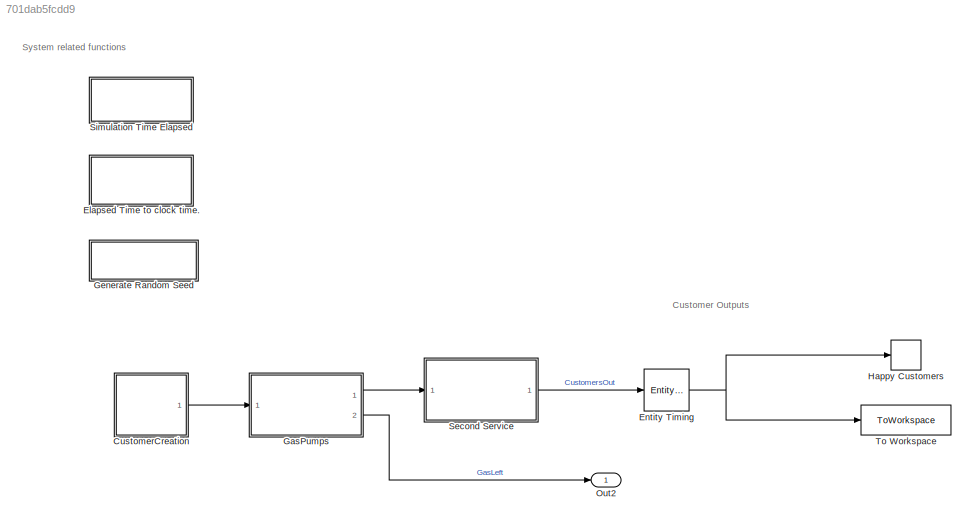
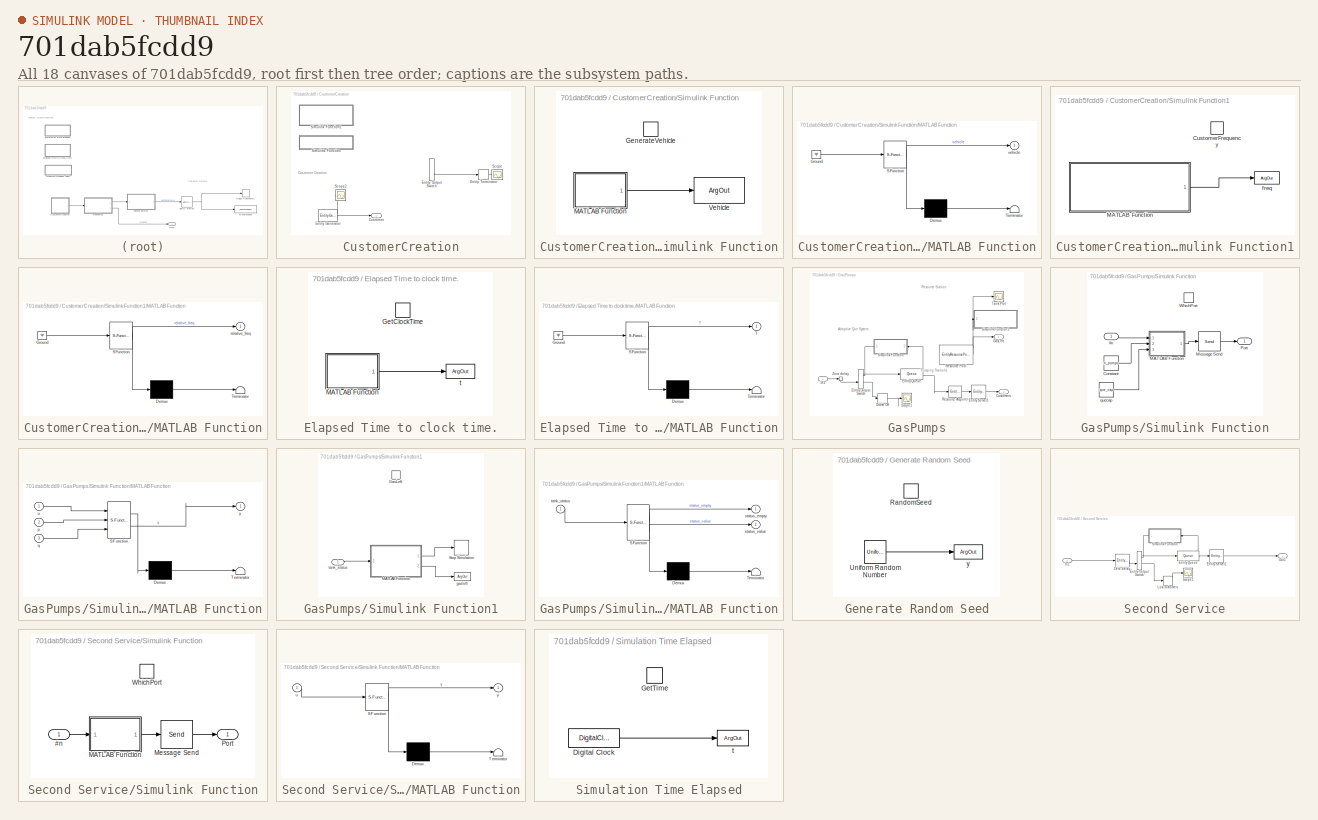
[diagram: thumbnail index - all 18 canvases of the model, root first then tree order]
MODEL slx_701dab5fcdd9
KIND model
CONFIG AbsTol = auto
CONFIG EnableMultiTasking = on
CONFIG FixedStep = auto
CONFIG InitFcn = % Load the model which describes\n% the traffic flow throughout the\n% day.\n%load("TrafficFlowModel.Mat")\n\n% Load the values at each quarter,\n% Sufficient for traffic modelling.\nload("TrafficFlowValues.mat")
CONFIG MaxStep = auto
CONFIG MinStep = auto
CONFIG RelTol = 1e-3
CONFIG SampleTimeConstraint = Unconstrained
CONFIG SolverName = VariableStepAuto
CONFIG StartTime = 0.0
CONFIG StopTime = 168
BLOCK [SubSystem] CustomerCreation
  Ports = [0, 1]
  RequestExecContextInheritance = off
BLOCK [Outport] CustomerCreation/Customer
BLOCK [EntityGenerator] CustomerCreation/Entity Generator
  AttributeInitialValue = 1|1|1|1|0
  AttributeName = Vehicle|Passengers|RequiredGas|Hungry|ServiceTime
  EntityType = Structured
  EntityTypeName = Customer
  GenerateAction = seed = RandomSeed();\nrng(seed);\nvehicle = GenerateVehicle(); % 1 for gas vehicle, 0 for non gas.\n% In europe the average car occupies 1.5 passengers.\n% Therefor sample from weighted descrete variable.\npassengers = max(poissrnd(mu_passengers),1);\n% Gas required.\nif vehicle==1 % Car\n    required_gas = normrnd(45,4);\nelseif vehicle==2 % Trucks\n    required_gas = normrnd(757,40);\nelse % Pedestrians do...<+640ch>
  IntergenerationTimeAction = seed = RandomSeed();\nrng(seed);\ndt = exprnd(1/(mu_customers*CustomerFrequency()+eps),1);
  NumberEntitiesDeparted = on
  OutputPortMap = o0,o3
  OutputPortMessageModes = n,m
  Period = 1/4
  Ports = [0, 2]
  TimeSource = MATLAB action
BLOCK [EntityOutputSwitch] CustomerCreation/Entity Output Switch
  Commented = on
  InputPortMap = u0,u1
  InputPortMessageModes = m,m
  OutputPortMap = o0,o1
  OutputPortMessageModes = m,m
  Ports = [2, 2]
  SwitchAttributeName = RequiredGas
  SwitchingCriterion = From control port
BLOCK [EntityTerminator] CustomerCreation/Entity Terminator
  Commented = on
  InputPortMap = u0
  InputPortMessageModes = m
  NumberEntitiesArrived = on
  OutputPortMap = o0
  Ports = [1, 1]
BLOCK [Scope] CustomerCreation/Scope
  Commented = on
  Floating = off
  NameLocation = left
  NumInputPorts = 1
  Ports = [1]
  ScopeSpecificationString = Simulink.scopes.TimeScopeBlockCfg('CurrentConfiguration', extmgr.ConfigurationSet(extmgr.Configuration('Core','General UI',true),extmgr.Configuration('Core','Source UI',true),extmgr.Configuration('Sources','WiredSimulink',true,'DataLoggingVariableName','ScopeData2'),extmgr.Configuration('Visuals','Time Domain',true),extmgr.Configuration('Tools','Plot Navigation',true),extmgr.Configuration('Tools',...<+58ch>
BLOCK [Scope] CustomerCreation/Scope2
  Floating = off
  NumInputPorts = 1
  Ports = [1]
  ScopeSpecificationString = Simulink.scopes.TimeScopeBlockCfg('CurrentConfiguration', extmgr.ConfigurationSet(extmgr.Configuration('Core','General UI',true),extmgr.Configuration('Core','Source UI',true),extmgr.Configuration('Sources','WiredSimulink',true,'DataLoggingVariableName','ScopeData2'),extmgr.Configuration('Visuals','Time Domain',true,'SerializedDisplays',{struct('MinYLimReal','-214.5','MaxYLimReal','1940.5','YLabelR...<+1444ch>
BLOCK [SubSystem] CustomerCreation/Simulink Function
  Ports = [0, 0, 0, 1]
  RequestExecContextInheritance = off
  TreatAsAtomicUnit = on
BLOCK [TriggerPort] CustomerCreation/Simulink Function/GenerateVehicle
  FunctionName = GenerateVehicle
  FunctionVisibility = scoped
  IsSimulinkFunction = on
  Ports = []
  StatesWhenEnabling = held
  TriggerType = function-call
  VariantControl = (inherit)
BLOCK [SubSystem] CustomerCreation/Simulink Function/MATLAB Function
  ErrorFcn = Stateflow.Translate.translate
  PermitHierarchicalResolution = ExplicitOnly
  Ports = [0, 1]
  RequestExecContextInheritance = off
  SFBlockType = MATLAB Function
  TreatAsAtomicUnit = on
BLOCK [Demux] CustomerCreation/Simulink Function/MATLAB Function/ Demux 
  Outputs = 1
  Ports = [1, 1]
BLOCK [Ground] CustomerCreation/Simulink Function/MATLAB Function/ Ground 
BLOCK [S-Function] CustomerCreation/Simulink Function/MATLAB Function/ SFunction 
  EnableBusSupport = on
  FunctionName = sf_sfun
  PortCounts = [1 2]
  Ports = [1, 2]
  SFcnIsStateOwnerBlock = off
  SFunctionDeploymentMode = off
  Tag = Stateflow S-Function 4
BLOCK [Terminator] CustomerCreation/Simulink Function/MATLAB Function/ Terminator 
BLOCK [Outport] CustomerCreation/Simulink Function/MATLAB Function/vehicle
BLOCK [ArgOut] CustomerCreation/Simulink Function/Vehicle
  ArgumentName = Vehicle
  DisableCoverage = on
BLOCK [SubSystem] CustomerCreation/Simulink Function1
  Ports = [0, 0, 0, 1]
  RequestExecContextInheritance = off
  TreatAsAtomicUnit = on
BLOCK [TriggerPort] CustomerCreation/Simulink Function1/CustomerFrequency
  FunctionName = CustomerFrequency
  FunctionVisibility = scoped
  IsSimulinkFunction = on
  Ports = []
  StatesWhenEnabling = held
  TriggerType = function-call
  VariantControl = (inherit)
BLOCK [SubSystem] CustomerCreation/Simulink Function1/MATLAB Function
  ErrorFcn = Stateflow.Translate.translate
  PermitHierarchicalResolution = ExplicitOnly
  Ports = [0, 1]
  RequestExecContextInheritance = off
  SFBlockType = MATLAB Function
  TreatAsAtomicUnit = on
BLOCK [Demux] CustomerCreation/Simulink Function1/MATLAB Function/ Demux 
  Outputs = 1
  Ports = [1, 1]
BLOCK [Ground] CustomerCreation/Simulink Function1/MATLAB Function/ Ground 
BLOCK [S-Function] CustomerCreation/Simulink Function1/MATLAB Function/ SFunction 
  EnableBusSupport = on
  FunctionName = sf_sfun
  Parameters = traffic_values
  PortCounts = [1 2]
  Ports = [1, 2]
  SFcnIsStateOwnerBlock = off
  SFunctionDeploymentMode = off
  Tag = Stateflow S-Function 6
BLOCK [Terminator] CustomerCreation/Simulink Function1/MATLAB Function/ Terminator 
BLOCK [Outport] CustomerCreation/Simulink Function1/MATLAB Function/relative_freq
BLOCK [ArgOut] CustomerCreation/Simulink Function1/freq
  ArgumentName = freq
  DisableCoverage = on
BLOCK [SubSystem] Elapsed Time to clock time.
  Ports = [0, 0, 0, 1]
  RequestExecContextInheritance = off
  TreatAsAtomicUnit = on
BLOCK [TriggerPort] Elapsed Time to clock time./GetClockTime
  FunctionName = GetClockTime
  FunctionVisibility = scoped
  IsSimulinkFunction = on
  Ports = []
  StatesWhenEnabling = held
  TriggerType = function-call
  VariantControl = (inherit)
BLOCK [SubSystem] Elapsed Time to clock time./MATLAB Function
  ErrorFcn = Stateflow.Translate.translate
  PermitHierarchicalResolution = ExplicitOnly
  Ports = [0, 1]
  RequestExecContextInheritance = off
  SFBlockType = MATLAB Function
  TreatAsAtomicUnit = on
BLOCK [Demux] Elapsed Time to clock time./MATLAB Function/ Demux 
  Outputs = 1
  Ports = [1, 1]
BLOCK [Ground] Elapsed Time to clock time./MATLAB Function/ Ground 
BLOCK [S-Function] Elapsed Time to clock time./MATLAB Function/ SFunction 
  EnableBusSupport = on
  FunctionName = sf_sfun
  PortCounts = [1 2]
  Ports = [1, 2]
  SFcnIsStateOwnerBlock = off
  SFunctionDeploymentMode = off
  Tag = Stateflow S-Function 5
BLOCK [Terminator] Elapsed Time to clock time./MATLAB Function/ Terminator 
BLOCK [Outport] Elapsed Time to clock time./MATLAB Function/T
BLOCK [ArgOut] Elapsed Time to clock time./t
  ArgumentName = t
  DisableCoverage = on
BLOCK [EntityServer] Entity Timing
  Capacity = inf
  EntryAction = entity.ServiceTime = GetTime()-entity.ServiceTime;
  InputPortMap = u2
  InputPortMessageModes = m
  OutputPortMap = o9
  OutputPortMessageModes = m
  Ports = [1, 1]
  ServiceTimeValue = 0
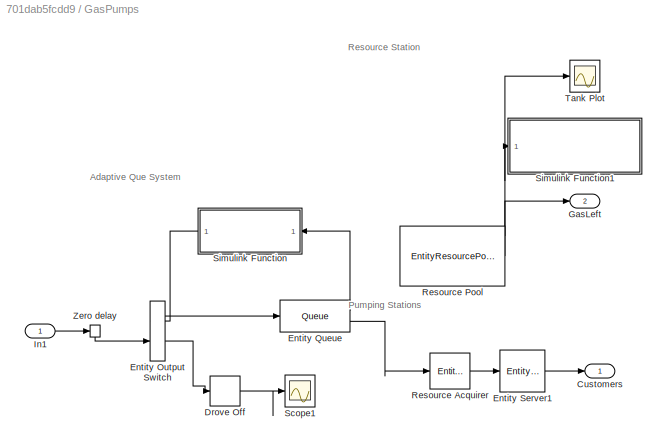
BLOCK [SubSystem] GasPumps
  Ports = [1, 2]
  RequestExecContextInheritance = off
BLOCK [Outport] GasPumps/Customers
  VectorParamsAs1DForOutWhenUnconnected = off
BLOCK [EntityTerminator] GasPumps/Drove Off
  InputPortMap = u0
  InputPortMessageModes = m
  NumberEntitiesArrived = on
  OutputPortMap = o0
  Ports = [1, 1]
BLOCK [EntityOutputSwitch] GasPumps/Entity Output Switch
  InputPortMap = u0,u1
  InputPortMessageModes = m,m
  OutputPortMap = o0,o1
  OutputPortMessageModes = m,m
  Ports = [2, 2]
  SwitchAttributeName = Attribute1
  SwitchingCriterion = From control port
BLOCK [Queue] GasPumps/Entity Queue
  Capacity = inf
  EntryAction = entity.ServiceTime = GetTime();
  InputPortMap = u0
  InputPortMessageModes = m
  NumberEntitiesInBlock = on
  OutputPortMap = o1,o5
  OutputPortMessageModes = n,m
  Ports = [1, 2]
BLOCK [EntityServer] GasPumps/Entity Server1
  Capacity = n_pumps
  InputPortMap = u2
  InputPortMessageModes = m
  OutputPortMap = o9
  OutputPortMessageModes = m
  Ports = [1, 1]
  ServiceTimeAction = dt = entity.RequiredGas/pump_rate +0.1*(entity.RequiredGas>0);
  ServiceTimeAttributeName = RequiredGas
  ServiceTimeSource = MATLAB action
  ServiceTimeValue = 1
BLOCK [Outport] GasPumps/GasLeft
  Port = 2
BLOCK [Inport] GasPumps/In1
BLOCK [EntityResourceAcquirer] GasPumps/Resource Acquirer
  EntryAction = gasleft = GasLeft();\nif entity.RequiredGas > gasleft\n    entity.RequiredGas = gasleft;    \nend
  InputPortMap = u0
  InputPortMessageModes = m
  OutputPortMap = o3
  OutputPortMessageModes = m
  Ports = [1, 1]
  ResourceAmount = RequiredGas
  ResourceAmountSource = Attribute
  ResourceName = MainGasTank
BLOCK [EntityResourcePool] GasPumps/Resource Pool
  AmountAvailable = on
  OutputPortMap = o2
  Ports = [0, 1]
  ResourceAmount = tank_size
  ResourceGranularity = Fractional amount
  ResourceName = MainGasTank
  ReusableUponRelease = off
BLOCK [Scope] GasPumps/Scope1
  Floating = off
  NumInputPorts = 1
  Ports = [1]
  ScopeSpecificationString = Simulink.scopes.TimeScopeBlockCfg('CurrentConfiguration', extmgr.ConfigurationSet(extmgr.Configuration('Core','General UI',true),extmgr.Configuration('Core','Source UI',true),extmgr.Configuration('Sources','WiredSimulink',true,'DataLoggingVariableName','ScopeData1'),extmgr.Configuration('Visuals','Time Domain',true,'SerializedDisplays',{struct('MinYLimReal','-138.125','MaxYLimReal','1253.125','YLa...<+1374ch>
BLOCK [SubSystem] GasPumps/Simulink Function
  Ports = [1, 1, 0, 1]
  RequestExecContextInheritance = off
  TreatAsAtomicUnit = on
BLOCK [Inport] GasPumps/Simulink Function/#n
BLOCK [Constant] GasPumps/Simulink Function/Constant
  SampleTime = -1
  Value = n_pumps
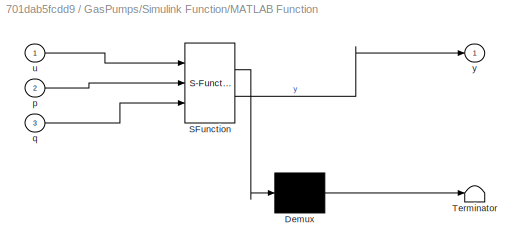
BLOCK [SubSystem] GasPumps/Simulink Function/MATLAB Function
  ErrorFcn = Stateflow.Translate.translate
  PermitHierarchicalResolution = ExplicitOnly
  Ports = [3, 1]
  RequestExecContextInheritance = off
  SFBlockType = MATLAB Function
  TreatAsAtomicUnit = on
BLOCK [Demux] GasPumps/Simulink Function/MATLAB Function/ Demux 
  Outputs = 1
  Ports = [1, 1]
BLOCK [S-Function] GasPumps/Simulink Function/MATLAB Function/ SFunction 
  EnableBusSupport = on
  FunctionName = sf_sfun
  PortCounts = [3 2]
  Ports = [3, 2]
  SFcnIsStateOwnerBlock = off
  SFunctionDeploymentMode = off
  Tag = Stateflow S-Function 2
BLOCK [Terminator] GasPumps/Simulink Function/MATLAB Function/ Terminator 
BLOCK [Inport] GasPumps/Simulink Function/MATLAB Function/p
  Port = 2
BLOCK [Inport] GasPumps/Simulink Function/MATLAB Function/q
  Port = 3
BLOCK [Inport] GasPumps/Simulink Function/MATLAB Function/u
BLOCK [Outport] GasPumps/Simulink Function/MATLAB Function/y
  VectorParamsAs1DForOutWhenUnconnected = off
BLOCK [Send] GasPumps/Simulink Function/Message Send
  InputPortMap = u1
  OutputPortMessageModes = m
  Ports = [1, 1]
BLOCK [Outport] GasPumps/Simulink Function/Port
  VectorParamsAs1DForOutWhenUnconnected = off
BLOCK [TriggerPort] GasPumps/Simulink Function/WhichPort
  FunctionName = WhichPort
  FunctionVisibility = scoped
  IsSimulinkFunction = on
  Ports = []
  StatesWhenEnabling = held
  TriggerType = function-call
  VariantControl = Variant
BLOCK [Constant] GasPumps/Simulink Function/quecap
  SampleTime = -1
  Value = que_cap
BLOCK [SubSystem] GasPumps/Simulink Function1
  Ports = [1, 0, 0, 1]
  RequestExecContextInheritance = off
  TreatAsAtomicUnit = on
BLOCK [TriggerPort] GasPumps/Simulink Function1/GasLeft
  FunctionName = GasLeft
  FunctionVisibility = scoped
  IsSimulinkFunction = on
  Ports = []
  StatesWhenEnabling = held
  TriggerType = function-call
  VariantControl = (inherit)
BLOCK [SubSystem] GasPumps/Simulink Function1/MATLAB Function
  ErrorFcn = Stateflow.Translate.translate
  PermitHierarchicalResolution = ExplicitOnly
  Ports = [1, 2]
  RequestExecContextInheritance = off
  SFBlockType = MATLAB Function
  TreatAsAtomicUnit = on
BLOCK [Demux] GasPumps/Simulink Function1/MATLAB Function/ Demux 
  Outputs = 1
  Ports = [1, 1]
BLOCK [S-Function] GasPumps/Simulink Function1/MATLAB Function/ SFunction 
  EnableBusSupport = on
  FunctionName = sf_sfun
  PortCounts = [1 3]
  Ports = [1, 3]
  SFcnIsStateOwnerBlock = off
  SFunctionDeploymentMode = off
  Tag = Stateflow S-Function 3
BLOCK [Terminator] GasPumps/Simulink Function1/MATLAB Function/ Terminator 
BLOCK [Outport] GasPumps/Simulink Function1/MATLAB Function/status_empty
BLOCK [Outport] GasPumps/Simulink Function1/MATLAB Function/status_value
  Port = 2
BLOCK [Inport] GasPumps/Simulink Function1/MATLAB Function/tank_status
BLOCK [Stop] GasPumps/Simulink Function1/Stop Simulation
BLOCK [ArgOut] GasPumps/Simulink Function1/gasleft
  ArgumentName = gasleft
  DisableCoverage = on
BLOCK [Inport] GasPumps/Simulink Function1/tank_status
BLOCK [Scope] GasPumps/Tank Plot
  Floating = off
  NumInputPorts = 1
  Ports = [1]
  ScopeSpecificationString = Simulink.scopes.TimeScopeBlockCfg('CurrentConfiguration', extmgr.ConfigurationSet(extmgr.Configuration('Core','General UI',true),extmgr.Configuration('Core','Source UI',true),extmgr.Configuration('Sources','WiredSimulink',true,'DataLoggingVariableName','ScopeData1'),extmgr.Configuration('Visuals','Time Domain',true,'SerializedDisplays',{struct('MinYLimReal','-12500.00000','MaxYLimReal','112500.000...<+1406ch>
BLOCK [EntityServer] GasPumps/Zero delay
  Capacity = inf
  EntryAction = WhichPort()
  InputPortMap = u2
  InputPortMessageModes = m
  OutputPortMap = o9
  OutputPortMessageModes = m
  Ports = [1, 1]
  ServiceTimeValue = 0
BLOCK [SubSystem] Generate Random Seed
  Ports = [0, 0, 0, 1]
  RequestExecContextInheritance = off
  TreatAsAtomicUnit = on
BLOCK [TriggerPort] Generate Random Seed/RandomSeed
  FunctionName = RandomSeed
  FunctionVisibility = scoped
  IsSimulinkFunction = on
  Ports = []
  StatesWhenEnabling = held
  TriggerType = function-call
  VariantControl = (inherit)
BLOCK [UniformRandomNumber] Generate Random Seed/Uniform Random Number
  Maximum = 1000000000
  Minimum = 100000
  Seed = randi(10000000)
BLOCK [ArgOut] Generate Random Seed/y
  ArgumentName = y
  DisableCoverage = on
BLOCK [EntityTerminator] Happy Customers
  EntryAction = entity.ServiceTime = GetTime()-entity.ServiceTime;
  InputPortMap = u0
  InputPortMessageModes = m
  Ports = [1]
BLOCK [Outport] Out2
BLOCK [SubSystem] Second Service
  Commented = through
  Ports = [1, 1]
  RequestExecContextInheritance = off
BLOCK [EntityOutputSwitch] Second Service/Entity Output Switch
  InputPortMap = u0,u1
  InputPortMessageModes = m,m
  OutputPortMap = o0,o1
  OutputPortMessageModes = m,m
  Ports = [2, 2]
  SwitchAttributeName = Attribute1
  SwitchingCriterion = From control port
BLOCK [Queue] Second Service/Entity Queue
  InputPortMap = u0
  InputPortMessageModes = m
  NumberEntitiesInBlock = on
  OutputPortMap = o1,o5
  OutputPortMessageModes = n,m
  Ports = [1, 2]
BLOCK [EntityServer] Second Service/Entity Server1
  Capacity = 1
  InputPortMap = u2
  InputPortMessageModes = m
  OutputPortMap = o9
  OutputPortMessageModes = m
  Ports = [1, 1]
BLOCK [Inport] Second Service/In1
BLOCK [EntityTerminator] Second Service/Lost customers
  InputPortMap = u0
  InputPortMessageModes = m
  NumberEntitiesArrived = on
  OutputPortMap = o0
  Ports = [1, 1]
BLOCK [Outport] Second Service/Out1
  VectorParamsAs1DForOutWhenUnconnected = off
BLOCK [Scope] Second Service/Scope1
  Floating = off
  NumInputPorts = 1
  Ports = [1]
  ScopeSpecificationString = Simulink.scopes.TimeScopeBlockCfg('CurrentConfiguration', extmgr.ConfigurationSet(extmgr.Configuration('Core','General UI',true),extmgr.Configuration('Core','Source UI',true),extmgr.Configuration('Sources','WiredSimulink',true,'DataLoggingVariableName','ScopeData1'),extmgr.Configuration('Visuals','Time Domain',true,'SerializedDisplays',{struct('MinYLimReal','0.25','MaxYLimReal','7.75','YLabelReal'...<+1350ch>
BLOCK [SubSystem] Second Service/Simulink Function
  Ports = [1, 1, 0, 1]
  RequestExecContextInheritance = off
  TreatAsAtomicUnit = on
BLOCK [Inport] Second Service/Simulink Function/#n
BLOCK [SubSystem] Second Service/Simulink Function/MATLAB Function
  ErrorFcn = Stateflow.Translate.translate
  PermitHierarchicalResolution = ExplicitOnly
  Ports = [1, 1]
  RequestExecContextInheritance = off
  SFBlockType = MATLAB Function
  TreatAsAtomicUnit = on
BLOCK [Demux] Second Service/Simulink Function/MATLAB Function/ Demux 
  Outputs = 1
  Ports = [1, 1]
BLOCK [S-Function] Second Service/Simulink Function/MATLAB Function/ SFunction 
  EnableBusSupport = on
  FunctionName = sf_sfun
  PortCounts = [1 2]
  Ports = [1, 2]
  SFcnIsStateOwnerBlock = off
  SFunctionDeploymentMode = off
  Tag = Stateflow S-Function 1
BLOCK [Terminator] Second Service/Simulink Function/MATLAB Function/ Terminator 
BLOCK [Inport] Second Service/Simulink Function/MATLAB Function/u
BLOCK [Outport] Second Service/Simulink Function/MATLAB Function/y
  VectorParamsAs1DForOutWhenUnconnected = off
BLOCK [Send] Second Service/Simulink Function/Message Send
  InputPortMap = u1
  OutputPortMessageModes = m
  Ports = [1, 1]
BLOCK [Outport] Second Service/Simulink Function/Port
  VectorParamsAs1DForOutWhenUnconnected = off
BLOCK [TriggerPort] Second Service/Simulink Function/WhichPort
  FunctionName = WhichPort
  FunctionVisibility = scoped
  IsSimulinkFunction = on
  Ports = []
  StatesWhenEnabling = held
  TriggerType = function-call
  VariantControl = Variant
BLOCK [EntityServer] Second Service/Zero delay
  Capacity = inf
  EntryAction = WhichPort()
  InputPortMap = u2
  InputPortMessageModes = m
  OutputPortMap = o9
  OutputPortMessageModes = m
  Ports = [1, 1]
  ServiceTimeValue = 0
BLOCK [SubSystem] Simulation Time Elapsed
  Ports = [0, 0, 0, 1]
  RequestExecContextInheritance = off
  TreatAsAtomicUnit = on
BLOCK [DigitalClock] Simulation Time Elapsed/Digital Clock
  SampleTime = -1
BLOCK [TriggerPort] Simulation Time Elapsed/GetTime
  FunctionName = GetTime
  FunctionVisibility = scoped
  IsSimulinkFunction = on
  Ports = []
  StatesWhenEnabling = held
  TriggerType = function-call
  VariantControl = (inherit)
BLOCK [ArgOut] Simulation Time Elapsed/t
  ArgumentName = t
  DisableCoverage = on
BLOCK [ToWorkspace] To Workspace
  FixptAsFi = on
  MaxDataPoints = inf
  Ports = [1]
  SampleTime = -1
  SaveFormat = Timeseries
  VariableName = customers
ANNOTATION (root): Customer Outputs
ANNOTATION (root): System related functions
ANNOTATION CustomerCreation: Customer Creation
ANNOTATION GasPumps: Adaptive Que System
ANNOTATION GasPumps: Pumping Stations
ANNOTATION GasPumps: Resource Station
LINE CustomerCreation/Entity Generator:1 -> CustomerCreation/Scope2:1
LINE CustomerCreation/Entity Generator:2 -> CustomerCreation/Customer:1
LINE CustomerCreation/Entity Output Switch:2 -> CustomerCreation/Entity Terminator:1
LINE CustomerCreation/Entity Terminator:1 -> CustomerCreation/Scope:1
LINE CustomerCreation/Simulink Function/MATLAB Function:1 -> CustomerCreation/Simulink Function/Vehicle:1
LINE CustomerCreation/Simulink Function1/MATLAB Function:1 -> CustomerCreation/Simulink Function1/freq:1
LINE CustomerCreation:1 -> GasPumps:1
LINE Elapsed Time to clock time./MATLAB Function:1 -> Elapsed Time to clock time./t:1
NET Entity Timing:1 -> Happy Customers:1, To Workspace:1
LINE GasPumps/Drove Off:1 -> GasPumps/Scope1:1
LINE GasPumps/Entity Output Switch:1 -> GasPumps/Entity Queue:1
LINE GasPumps/Entity Output Switch:2 -> GasPumps/Drove Off:1
LINE GasPumps/Entity Queue:1 -> GasPumps/Simulink Function:1
LINE GasPumps/Entity Queue:2 -> GasPumps/Resource Acquirer:1
LINE GasPumps/Entity Server1:1 -> GasPumps/Customers:1
LINE GasPumps/In1:1 -> GasPumps/Zero delay:1
LINE GasPumps/Resource Acquirer:1 -> GasPumps/Entity Server1:1
NET GasPumps/Resource Pool:1 -> GasPumps/GasLeft:1, GasPumps/Simulink Function1:1, GasPumps/Tank Plot:1
LINE GasPumps/Simulink Function/#n:1 -> GasPumps/Simulink Function/MATLAB Function:1
LINE GasPumps/Simulink Function/Constant:1 -> GasPumps/Simulink Function/MATLAB Function:2
LINE GasPumps/Simulink Function/MATLAB Function:1 -> GasPumps/Simulink Function/Message Send:1
LINE GasPumps/Simulink Function/Message Send:1 -> GasPumps/Simulink Function/Port:1
LINE GasPumps/Simulink Function/quecap:1 -> GasPumps/Simulink Function/MATLAB Function:3
LINE GasPumps/Simulink Function1/MATLAB Function:1 -> GasPumps/Simulink Function1/Stop Simulation:1
LINE GasPumps/Simulink Function1/MATLAB Function:2 -> GasPumps/Simulink Function1/gasleft:1
LINE GasPumps/Simulink Function1/tank_status:1 -> GasPumps/Simulink Function1/MATLAB Function:1
LINE GasPumps/Simulink Function:1 -> GasPumps/Entity Output Switch:1
LINE GasPumps/Zero delay:1 -> GasPumps/Entity Output Switch:2
LINE GasPumps:1 -> Second Service:1
LINE GasPumps:2 -> Out2:1
LINE Generate Random Seed/Uniform Random Number:1 -> Generate Random Seed/y:1
LINE Second Service/Entity Output Switch:1 -> Second Service/Entity Queue:1
LINE Second Service/Entity Output Switch:2 -> Second Service/Lost customers:1
LINE Second Service/Entity Queue:1 -> Second Service/Simulink Function:1
LINE Second Service/Entity Queue:2 -> Second Service/Entity Server1:1
LINE Second Service/Entity Server1:1 -> Second Service/Out1:1
LINE Second Service/In1:1 -> Second Service/Zero delay:1
LINE Second Service/Lost customers:1 -> Second Service/Scope1:1
LINE Second Service/Simulink Function/#n:1 -> Second Service/Simulink Function/MATLAB Function:1
LINE Second Service/Simulink Function/MATLAB Function:1 -> Second Service/Simulink Function/Message Send:1
LINE Second Service/Simulink Function/Message Send:1 -> Second Service/Simulink Function/Port:1
LINE Second Service/Simulink Function:1 -> Second Service/Entity Output Switch:1
LINE Second Service/Zero delay:1 -> Second Service/Entity Output Switch:2
LINE Second Service:1 -> Entity Timing:1
LINE Simulation Time Elapsed/Digital Clock:1 -> Simulation Time Elapsed/t:1
note: NET lines group one-source signal fan-out (src -> all destinations, sorted); 1:1 wires keep LINE
CHART GasPumps/Simulink Function/MATLAB Function states=1 transitions=1
  STATE_LABEL 'eML_blk_kernel()'
  STATE_LABEL 'SCRIPT:\nfunction y = fcn(u,p,q)\n\nlimit=q*p;\nif u<limit\n    y=1;\nelse\n    y=2;\nend\n'
CHART GasPumps/Simulink Function1/MATLAB Function states=1 transitions=1
  STATE_LABEL 'eML_blk_kernel()'
  STATE_LABEL 'SCRIPT:\nfunction [status_empty,status_value] = fcn(tank_status)\n% Check if the resourse tank is empty.\n% The system will terminate if the tank is empty.\n% \n% INPUT:\n%   \n%   tank_status - The number of liters left in the tank.\n%\n% OUTPUT:\n%   \n%   status_empty - 1 if empty 0 else.\n%\n%   status_value - Number of liters left.\n%\n\nstatus_empty = tank_status<=0;\nstatus_value = tank_status;\nend'
CHART CustomerCreation/Simulink Function/MATLAB Function states=1 transitions=1
  STATE_LABEL 'eML_blk_kernel()'
  STATE_LABEL 'SCRIPT:\nfunction vehicle = GenVehicle()\n% GENVEHICLE Generates a vehicle representation at depending on time of\n%   day. 1 for PassengerCar, 2 for semi.\n%\n% INPUT\n%   ...\n%\n% OUTPUT\n%\n%   vehicle - (int) Representation of time.\n%\nT = GetClockTime();\n% The frequency of the vehicle depends on time.\n% The following have been used:\n%   CARS in TRUCK\n%    50       1   04.00->21.00\n%    30       1   21....<+251ch>'
CHART Elapsed Time to clock time./MATLAB Function states=1 transitions=1
  STATE_LABEL 'eML_blk_kernel()'
  STATE_LABEL 'SCRIPT:\nfunction T = ElapsedToClock()\n% TIMETOCLOCK Converts the elapsed time of the simulation to clock time.\n%\n% INPUT\n%   ...\n% OUTPUT\n%   \n%   T - Time of the day, i.e. 4 PM or 16.00\n%\nT = GetTime();\nT = mod(T,24);\nend\n'
CHART CustomerCreation/Simulink Function1/MATLAB Function states=1 transitions=1
  STATE_LABEL 'eML_blk_kernel()'
  STATE_LABEL 'SCRIPT:\nfunction relative_freq = InspectFrequency(traffic_values)\n    % traffic_values is taken from matlab workspace and loaded\n    % during InitFcn for the model.\n    T = GetClockTime();\n    t = round(T*4)/4;\n    relative_freq = traffic_values(t*4+1);\nend\n'
CHART Second Service/Simulink Function/MATLAB Function states=1 transitions=1
  STATE_LABEL 'eML_blk_kernel()'
  STATE_LABEL 'SCRIPT:\nfunction y = fcn(u)\n%#codegen\nLimitValue=2;\nif u<LimitValue\n    y=1;\nelse\n    y=2;\nend\n'
CHART  states=0 transitions=0
CHART  states=0 transitions=0
CHART  states=0 transitions=0
CHART  states=0 transitions=0
CHART  states=0 transitions=0
CHART  states=0 transitions=0
